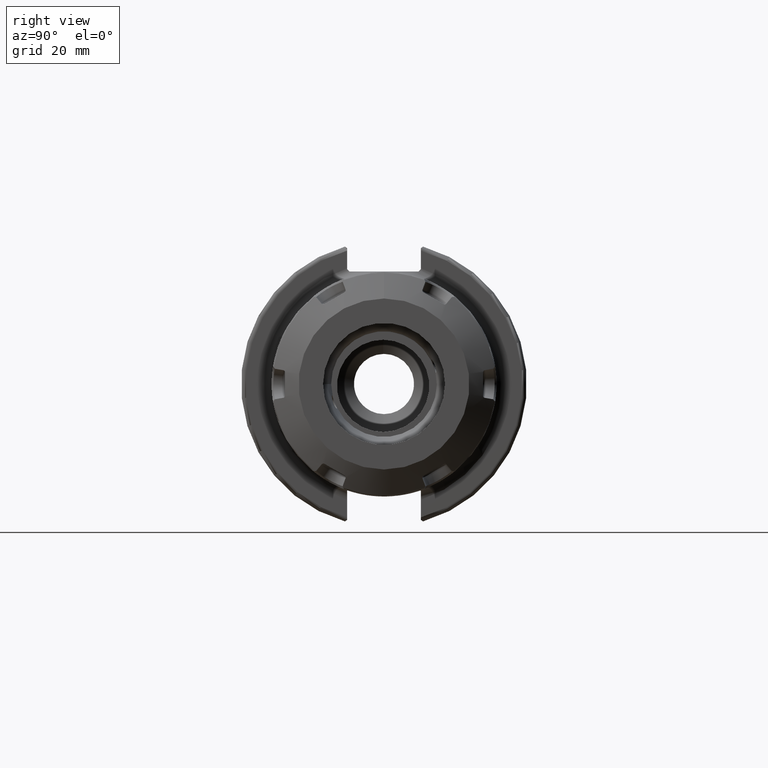
[diagram: clean part render]
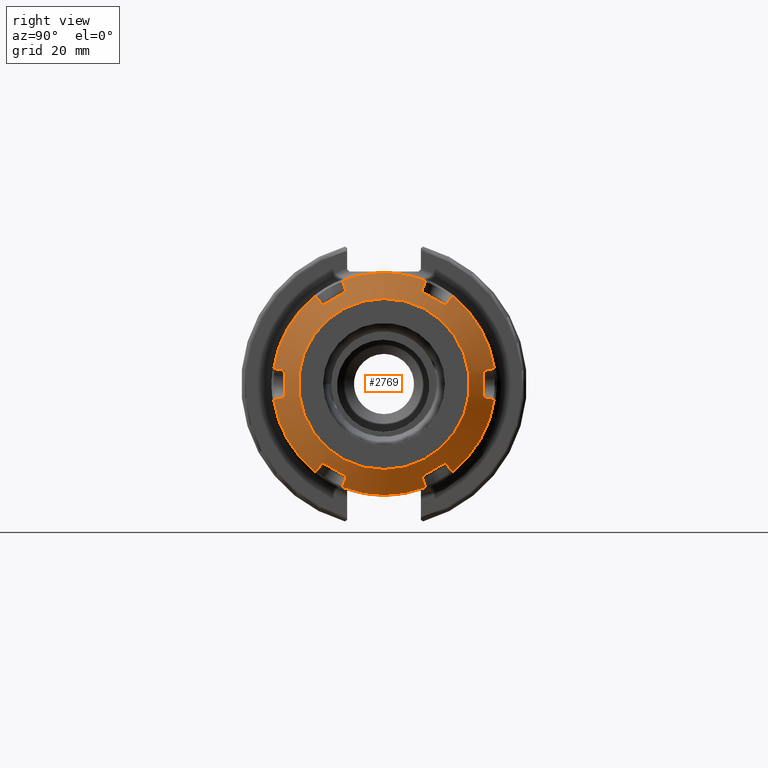
[diagram: same view with one face highlighted and labeled with its STEP entity id]
A machine part, right view. The second image highlights one B-rep face of the part: STEP entity #2769.
In plain terms, the highlighted conical surface has half-angle 60 deg.
Its self-contained STEP definition (entity closure, byte-faithful):
#133=(
BOUNDED_CURVE()
B_SPLINE_CURVE(2,(#4760,#4761,#4762),.UNSPECIFIED.,.F.,.F.)
B_SPLINE_CURVE_WITH_KNOTS((3,3),(3.51476215686957,4.31734241493005),
 .UNSPECIFIED.)
CURVE()
GEOMETRIC_REPRESENTATION_ITEM()
RATIONAL_B_SPLINE_CURVE((1.47709269009182,1.48721867500282,1.47709269009183))
REPRESENTATION_ITEM('')
);
#134=(
BOUNDED_CURVE()
B_SPLINE_CURVE(2,(#4814,#4815,#4816),.UNSPECIFIED.,.F.,.F.)
B_SPLINE_CURVE_WITH_KNOTS((3,3),(3.51476215686976,4.31734241493044),
 .UNSPECIFIED.)
CURVE()
GEOMETRIC_REPRESENTATION_ITEM()
RATIONAL_B_SPLINE_CURVE((1.47709269009192,1.48721867500291,1.47709269009192))
REPRESENTATION_ITEM('')
);
#135=(
BOUNDED_CURVE()
B_SPLINE_CURVE(2,(#4868,#4869,#4870),.UNSPECIFIED.,.F.,.F.)
B_SPLINE_CURVE_WITH_KNOTS((3,3),(3.51476215686984,4.31734241493033),
 .UNSPECIFIED.)
CURVE()
GEOMETRIC_REPRESENTATION_ITEM()
RATIONAL_B_SPLINE_CURVE((1.47709269009183,1.48721867500282,1.47709269009182))
REPRESENTATION_ITEM('')
);
#136=(
BOUNDED_CURVE()
B_SPLINE_CURVE(2,(#4922,#4923,#4924),.UNSPECIFIED.,.F.,.F.)
B_SPLINE_CURVE_WITH_KNOTS((3,3),(3.51476215686957,4.31734241493005),
 .UNSPECIFIED.)
CURVE()
GEOMETRIC_REPRESENTATION_ITEM()
RATIONAL_B_SPLINE_CURVE((1.47709269009182,1.48721867500282,1.47709269009183))
REPRESENTATION_ITEM('')
);
#137=(
BOUNDED_CURVE()
B_SPLINE_CURVE(2,(#4976,#4977,#4978),.UNSPECIFIED.,.F.,.F.)
B_SPLINE_CURVE_WITH_KNOTS((3,3),(3.51476215686976,4.31734241493044),
 .UNSPECIFIED.)
CURVE()
GEOMETRIC_REPRESENTATION_ITEM()
RATIONAL_B_SPLINE_CURVE((1.47709269009192,1.48721867500291,1.47709269009192))
REPRESENTATION_ITEM('')
);
#138=(
BOUNDED_CURVE()
B_SPLINE_CURVE(2,(#5030,#5031,#5032),.UNSPECIFIED.,.F.,.F.)
B_SPLINE_CURVE_WITH_KNOTS((3,3),(3.51476215686984,4.31734241493033),
 .UNSPECIFIED.)
CURVE()
GEOMETRIC_REPRESENTATION_ITEM()
RATIONAL_B_SPLINE_CURVE((1.47709269009183,1.48721867500282,1.47709269009182))
REPRESENTATION_ITEM('')
);
#201=B_SPLINE_CURVE_WITH_KNOTS('',3,(#4736,#4737,#4738,#4739,#4740),
 .UNSPECIFIED.,.F.,.F.,(4,1,4),(0.,0.5,1.),.UNSPECIFIED.);
#202=B_SPLINE_CURVE_WITH_KNOTS('',3,(#4742,#4743,#4744,#4745,#4746,#4747),
 .UNSPECIFIED.,.F.,.F.,(4,1,1,4),(0.,0.3333333333333,0.6666666666667,1.),
 .UNSPECIFIED.);
#203=B_SPLINE_CURVE_WITH_KNOTS('',3,(#4749,#4750,#4751,#4752,#4753,#4754,
#4755,#4756,#4757,#4758),.UNSPECIFIED.,.F.,.F.,(4,2,2,2,4),(0.0021929011140548,
0.0216290017748505,0.0432580035497009,0.0616866380642235,0.0744888904768261),
 .UNSPECIFIED.);
#204=B_SPLINE_CURVE_WITH_KNOTS('',3,(#4764,#4765,#4766,#4767,#4768,#4769,
#4770,#4771,#4772,#4773),.UNSPECIFIED.,.F.,.F.,(4,2,2,2,4),(0.250635890627103,
0.263438143039404,0.281866777553927,0.303495779328777,0.322931879990271),
 .UNSPECIFIED.);
#205=B_SPLINE_CURVE_WITH_KNOTS('',3,(#4775,#4776,#4777,#4778,#4779,#4780),
 .UNSPECIFIED.,.F.,.F.,(4,1,1,4),(0.,0.3333333333333,0.6666666666667,1.),
 .UNSPECIFIED.);
#206=B_SPLINE_CURVE_WITH_KNOTS('',3,(#4782,#4783,#4784,#4785,#4786),
 .UNSPECIFIED.,.F.,.F.,(4,1,4),(0.,0.5,1.),.UNSPECIFIED.);
#207=B_SPLINE_CURVE_WITH_KNOTS('',3,(#4790,#4791,#4792,#4793,#4794),
 .UNSPECIFIED.,.F.,.F.,(4,1,4),(0.,0.5,1.),.UNSPECIFIED.);
#208=B_SPLINE_CURVE_WITH_KNOTS('',3,(#4796,#4797,#4798,#4799,#4800,#4801),
 .UNSPECIFIED.,.F.,.F.,(4,1,1,4),(0.,0.3333333333333,0.6666666666667,1.),
 .UNSPECIFIED.);
#209=B_SPLINE_CURVE_WITH_KNOTS('',3,(#4803,#4804,#4805,#4806,#4807,#4808,
#4809,#4810,#4811,#4812),.UNSPECIFIED.,.F.,.F.,(4,2,2,2,4),(0.00219290111341628,
0.0216290017748504,0.0432580035497007,0.0616866380642232,0.074488890476436),
 .UNSPECIFIED.);
#210=B_SPLINE_CURVE_WITH_KNOTS('',3,(#4818,#4819,#4820,#4821,#4822,#4823,
#4824,#4825,#4826,#4827),.UNSPECIFIED.,.F.,.F.,(4,2,2,2,4),(0.250635890627191,
0.263438143039404,0.281866777553927,0.303495779328777,0.32293187999021),
 .UNSPECIFIED.);
#211=B_SPLINE_CURVE_WITH_KNOTS('',3,(#4829,#4830,#4831,#4832,#4833,#4834),
 .UNSPECIFIED.,.F.,.F.,(4,1,1,4),(0.,0.3333333333333,0.6666666666667,1.),
 .UNSPECIFIED.);
#212=B_SPLINE_CURVE_WITH_KNOTS('',3,(#4836,#4837,#4838,#4839,#4840),
 .UNSPECIFIED.,.F.,.F.,(4,1,4),(0.,0.5,1.),.UNSPECIFIED.);
#213=B_SPLINE_CURVE_WITH_KNOTS('',3,(#4844,#4845,#4846,#4847,#4848),
 .UNSPECIFIED.,.F.,.F.,(4,1,4),(0.,0.5,1.),.UNSPECIFIED.);
#214=B_SPLINE_CURVE_WITH_KNOTS('',3,(#4850,#4851,#4852,#4853,#4854,#4855),
 .UNSPECIFIED.,.F.,.F.,(4,1,1,4),(0.,0.3333333333333,0.6666666666667,1.),
 .UNSPECIFIED.);
#215=B_SPLINE_CURVE_WITH_KNOTS('',3,(#4857,#4858,#4859,#4860,#4861,#4862,
#4863,#4864,#4865,#4866),.UNSPECIFIED.,.F.,.F.,(4,2,2,2,4),(0.00219290111335722,
0.0216290017748503,0.0432580035497006,0.0616866380642232,0.0744888904765242),
 .UNSPECIFIED.);
#216=B_SPLINE_CURVE_WITH_KNOTS('',3,(#4872,#4873,#4874,#4875,#4876,#4877,
#4878,#4879,#4880,#4881),.UNSPECIFIED.,.F.,.F.,(4,2,2,2,4),(0.250635890626801,
0.263438143039404,0.281866777553926,0.303495779328777,0.322931879989572),
 .UNSPECIFIED.);
#217=B_SPLINE_CURVE_WITH_KNOTS('',3,(#4883,#4884,#4885,#4886,#4887,#4888),
 .UNSPECIFIED.,.F.,.F.,(4,1,1,4),(0.,0.3333333333333,0.6666666666667,1.),
 .UNSPECIFIED.);
#218=B_SPLINE_CURVE_WITH_KNOTS('',3,(#4890,#4891,#4892,#4893,#4894),
 .UNSPECIFIED.,.F.,.F.,(4,1,4),(0.,0.5,1.),.UNSPECIFIED.);
#219=B_SPLINE_CURVE_WITH_KNOTS('',3,(#4898,#4899,#4900,#4901,#4902),
 .UNSPECIFIED.,.F.,.F.,(4,1,4),(0.,0.5,1.),.UNSPECIFIED.);
#220=B_SPLINE_CURVE_WITH_KNOTS('',3,(#4904,#4905,#4906,#4907,#4908,#4909),
 .UNSPECIFIED.,.F.,.F.,(4,1,1,4),(0.,0.3333333333333,0.6666666666667,1.),
 .UNSPECIFIED.);
#221=B_SPLINE_CURVE_WITH_KNOTS('',3,(#4911,#4912,#4913,#4914,#4915,#4916,
#4917,#4918,#4919,#4920),.UNSPECIFIED.,.F.,.F.,(4,2,2,2,4),(0.0021929011140548,
0.0216290017748505,0.0432580035497009,0.0616866380642235,0.0744888904768256),
 .UNSPECIFIED.);
#222=B_SPLINE_CURVE_WITH_KNOTS('',3,(#4926,#4927,#4928,#4929,#4930,#4931,
#4932,#4933,#4934,#4935),.UNSPECIFIED.,.F.,.F.,(4,2,2,2,4),(0.250635890627103,
0.263438143039404,0.281866777553927,0.303495779328777,0.322931879990271),
 .UNSPECIFIED.);
#223=B_SPLINE_CURVE_WITH_KNOTS('',3,(#4937,#4938,#4939,#4940,#4941,#4942),
 .UNSPECIFIED.,.F.,.F.,(4,1,1,4),(0.,0.3333333333333,0.6666666666667,1.),
 .UNSPECIFIED.);
#224=B_SPLINE_CURVE_WITH_KNOTS('',3,(#4944,#4945,#4946,#4947,#4948),
 .UNSPECIFIED.,.F.,.F.,(4,1,4),(0.,0.5,1.),.UNSPECIFIED.);
#225=B_SPLINE_CURVE_WITH_KNOTS('',3,(#4952,#4953,#4954,#4955,#4956),
 .UNSPECIFIED.,.F.,.F.,(4,1,4),(0.,0.5,1.),.UNSPECIFIED.);
#226=B_SPLINE_CURVE_WITH_KNOTS('',3,(#4958,#4959,#4960,#4961,#4962,#4963),
 .UNSPECIFIED.,.F.,.F.,(4,1,1,4),(0.,0.3333333333333,0.6666666666667,1.),
 .UNSPECIFIED.);
#227=B_SPLINE_CURVE_WITH_KNOTS('',3,(#4965,#4966,#4967,#4968,#4969,#4970,
#4971,#4972,#4973,#4974),.UNSPECIFIED.,.F.,.F.,(4,2,2,2,4),(0.00219290111341628,
0.0216290017748504,0.0432580035497007,0.0616866380642232,0.074488890476436),
 .UNSPECIFIED.);
#228=B_SPLINE_CURVE_WITH_KNOTS('',3,(#4980,#4981,#4982,#4983,#4984,#4985,
#4986,#4987,#4988,#4989),.UNSPECIFIED.,.F.,.F.,(4,2,2,2,4),(0.250635890627191,
0.263438143039404,0.281866777553927,0.303495779328777,0.32293187999021),
 .UNSPECIFIED.);
#229=B_SPLINE_CURVE_WITH_KNOTS('',3,(#4991,#4992,#4993,#4994,#4995,#4996),
 .UNSPECIFIED.,.F.,.F.,(4,1,1,4),(0.,0.3333333333333,0.6666666666667,1.),
 .UNSPECIFIED.);
#230=B_SPLINE_CURVE_WITH_KNOTS('',3,(#4998,#4999,#5000,#5001,#5002),
 .UNSPECIFIED.,.F.,.F.,(4,1,4),(0.,0.5,1.),.UNSPECIFIED.);
#231=B_SPLINE_CURVE_WITH_KNOTS('',3,(#5006,#5007,#5008,#5009,#5010),
 .UNSPECIFIED.,.F.,.F.,(4,1,4),(0.,0.5,1.),.UNSPECIFIED.);
#232=B_SPLINE_CURVE_WITH_KNOTS('',3,(#5012,#5013,#5014,#5015,#5016,#5017),
 .UNSPECIFIED.,.F.,.F.,(4,1,1,4),(0.,0.3333333333333,0.6666666666667,1.),
 .UNSPECIFIED.);
#233=B_SPLINE_CURVE_WITH_KNOTS('',3,(#5019,#5020,#5021,#5022,#5023,#5024,
#5025,#5026,#5027,#5028),.UNSPECIFIED.,.F.,.F.,(4,2,2,2,4),(0.00219290111335722,
0.0216290017748503,0.0432580035497006,0.0616866380642232,0.0744888904765241),
 .UNSPECIFIED.);
#234=B_SPLINE_CURVE_WITH_KNOTS('',3,(#5034,#5035,#5036,#5037,#5038,#5039,
#5040,#5041,#5042,#5043),.UNSPECIFIED.,.F.,.F.,(4,2,2,2,4),(0.250635890626801,
0.263438143039404,0.281866777553926,0.303495779328777,0.322931879989573),
 .UNSPECIFIED.);
#235=B_SPLINE_CURVE_WITH_KNOTS('',3,(#5045,#5046,#5047,#5048,#5049,#5050),
 .UNSPECIFIED.,.F.,.F.,(4,1,1,4),(0.,0.3333333333333,0.6666666666667,1.),
 .UNSPECIFIED.);
#236=B_SPLINE_CURVE_WITH_KNOTS('',3,(#5052,#5053,#5054,#5055,#5056),
 .UNSPECIFIED.,.F.,.F.,(4,1,4),(0.,0.5,1.),.UNSPECIFIED.);
#475=FACE_OUTER_BOUND('',#651,.T.);
#651=EDGE_LOOP('',(#2295,#2296,#2297,#2298,#2299,#2300,#2301,#2302,#2303,
#2304,#2305,#2306,#2307,#2308,#2309,#2310,#2311,#2312,#2313,#2314,#2315,
#2316,#2317,#2318,#2319,#2320,#2321,#2322,#2323,#2324,#2325,#2326,#2327,
#2328,#2329,#2330,#2331,#2332,#2333,#2334,#2335,#2336,#2337,#2338,#2339,
#2340,#2341,#2342,#2343,#2344,#2345,#2346));
#808=LINE('',#5058,#971);
#971=VECTOR('',#3662,21.87499999999);
#1131=CIRCLE('',#3091,19.);
#1132=CIRCLE('',#3093,24.75);
#1133=CIRCLE('',#3094,24.75);
#1134=CIRCLE('',#3095,24.75);
#1135=CIRCLE('',#3096,24.75);
#1136=CIRCLE('',#3097,24.75);
#1137=CIRCLE('',#3098,24.75);
#1138=CIRCLE('',#3099,24.75);
#1321=VERTEX_POINT('',#4729);
#1322=VERTEX_POINT('',#4732);
#1323=VERTEX_POINT('',#4733);
#1324=VERTEX_POINT('',#4735);
#1325=VERTEX_POINT('',#4741);
#1326=VERTEX_POINT('',#4748);
#1327=VERTEX_POINT('',#4759);
#1328=VERTEX_POINT('',#4763);
#1329=VERTEX_POINT('',#4774);
#1330=VERTEX_POINT('',#4781);
#1331=VERTEX_POINT('',#4787);
#1332=VERTEX_POINT('',#4789);
#1333=VERTEX_POINT('',#4795);
#1334=VERTEX_POINT('',#4802);
#1335=VERTEX_POINT('',#4813);
#1336=VERTEX_POINT('',#4817);
#1337=VERTEX_POINT('',#4828);
#1338=VERTEX_POINT('',#4835);
#1339=VERTEX_POINT('',#4841);
#1340=VERTEX_POINT('',#4843);
#1341=VERTEX_POINT('',#4849);
#1342=VERTEX_POINT('',#4856);
#1343=VERTEX_POINT('',#4867);
#1344=VERTEX_POINT('',#4871);
#1345=VERTEX_POINT('',#4882);
#1346=VERTEX_POINT('',#4889);
#1347=VERTEX_POINT('',#4895);
#1348=VERTEX_POINT('',#4897);
#1349=VERTEX_POINT('',#4903);
#1350=VERTEX_POINT('',#4910);
#1351=VERTEX_POINT('',#4921);
#1352=VERTEX_POINT('',#4925);
#1353=VERTEX_POINT('',#4936);
#1354=VERTEX_POINT('',#4943);
#1355=VERTEX_POINT('',#4949);
#1356=VERTEX_POINT('',#4951);
#1357=VERTEX_POINT('',#4957);
#1358=VERTEX_POINT('',#4964);
#1359=VERTEX_POINT('',#4975);
#1360=VERTEX_POINT('',#4979);
#1361=VERTEX_POINT('',#4990);
#1362=VERTEX_POINT('',#4997);
#1363=VERTEX_POINT('',#5003);
#1364=VERTEX_POINT('',#5005);
#1365=VERTEX_POINT('',#5011);
#1366=VERTEX_POINT('',#5018);
#1367=VERTEX_POINT('',#5029);
#1368=VERTEX_POINT('',#5033);
#1369=VERTEX_POINT('',#5044);
#1370=VERTEX_POINT('',#5051);
#1660=EDGE_CURVE('',#1321,#1321,#1131,.T.);
#1661=EDGE_CURVE('',#1322,#1323,#1132,.T.);
#1662=EDGE_CURVE('',#1322,#1324,#201,.T.);
#1663=EDGE_CURVE('',#1325,#1324,#202,.T.);
#1664=EDGE_CURVE('',#1325,#1326,#203,.T.);
#1665=EDGE_CURVE('',#1327,#1326,#133,.T.);
#1666=EDGE_CURVE('',#1327,#1328,#204,.T.);
#1667=EDGE_CURVE('',#1329,#1328,#205,.T.);
#1668=EDGE_CURVE('',#1329,#1330,#206,.T.);
#1669=EDGE_CURVE('',#1330,#1331,#1133,.T.);
#1670=EDGE_CURVE('',#1331,#1332,#207,.T.);
#1671=EDGE_CURVE('',#1333,#1332,#208,.T.);
#1672=EDGE_CURVE('',#1333,#1334,#209,.T.);
#1673=EDGE_CURVE('',#1335,#1334,#134,.T.);
#1674=EDGE_CURVE('',#1335,#1336,#210,.T.);
#1675=EDGE_CURVE('',#1337,#1336,#211,.T.);
#1676=EDGE_CURVE('',#1337,#1338,#212,.T.);
#1677=EDGE_CURVE('',#1338,#1339,#1134,.T.);
#1678=EDGE_CURVE('',#1339,#1340,#213,.T.);
#1679=EDGE_CURVE('',#1341,#1340,#214,.T.);
#1680=EDGE_CURVE('',#1341,#1342,#215,.T.);
#1681=EDGE_CURVE('',#1343,#1342,#135,.T.);
#1682=EDGE_CURVE('',#1343,#1344,#216,.T.);
#1683=EDGE_CURVE('',#1345,#1344,#217,.T.);
#1684=EDGE_CURVE('',#1345,#1346,#218,.T.);
#1685=EDGE_CURVE('',#1347,#1346,#1135,.T.);
#1686=EDGE_CURVE('',#1347,#1348,#219,.T.);
#1687=EDGE_CURVE('',#1349,#1348,#220,.T.);
#1688=EDGE_CURVE('',#1349,#1350,#221,.T.);
#1689=EDGE_CURVE('',#1351,#1350,#136,.T.);
#1690=EDGE_CURVE('',#1351,#1352,#222,.T.);
#1691=EDGE_CURVE('',#1353,#1352,#223,.T.);
#1692=EDGE_CURVE('',#1353,#1354,#224,.T.);
#1693=EDGE_CURVE('',#1354,#1355,#1136,.T.);
#1694=EDGE_CURVE('',#1355,#1356,#225,.T.);
#1695=EDGE_CURVE('',#1357,#1356,#226,.T.);
#1696=EDGE_CURVE('',#1357,#1358,#227,.T.);
#1697=EDGE_CURVE('',#1359,#1358,#137,.T.);
#1698=EDGE_CURVE('',#1359,#1360,#228,.T.);
#1699=EDGE_CURVE('',#1361,#1360,#229,.T.);
#1700=EDGE_CURVE('',#1361,#1362,#230,.T.);
#1701=EDGE_CURVE('',#1362,#1363,#1137,.T.);
#1702=EDGE_CURVE('',#1363,#1364,#231,.T.);
#1703=EDGE_CURVE('',#1365,#1364,#232,.T.);
#1704=EDGE_CURVE('',#1365,#1366,#233,.T.);
#1705=EDGE_CURVE('',#1367,#1366,#138,.T.);
#1706=EDGE_CURVE('',#1367,#1368,#234,.T.);
#1707=EDGE_CURVE('',#1369,#1368,#235,.T.);
#1708=EDGE_CURVE('',#1369,#1370,#236,.T.);
#1709=EDGE_CURVE('',#1323,#1370,#1138,.T.);
#1710=EDGE_CURVE('',#1323,#1321,#808,.T.);
#2295=ORIENTED_EDGE('',*,*,#1661,.F.);
#2296=ORIENTED_EDGE('',*,*,#1662,.T.);
#2297=ORIENTED_EDGE('',*,*,#1663,.F.);
#2298=ORIENTED_EDGE('',*,*,#1664,.T.);
#2299=ORIENTED_EDGE('',*,*,#1665,.F.);
#2300=ORIENTED_EDGE('',*,*,#1666,.T.);
#2301=ORIENTED_EDGE('',*,*,#1667,.F.);
#2302=ORIENTED_EDGE('',*,*,#1668,.T.);
#2303=ORIENTED_EDGE('',*,*,#1669,.T.);
#2304=ORIENTED_EDGE('',*,*,#1670,.T.);
#2305=ORIENTED_EDGE('',*,*,#1671,.F.);
#2306=ORIENTED_EDGE('',*,*,#1672,.T.);
#2307=ORIENTED_EDGE('',*,*,#1673,.F.);
#2308=ORIENTED_EDGE('',*,*,#1674,.T.);
#2309=ORIENTED_EDGE('',*,*,#1675,.F.);
#2310=ORIENTED_EDGE('',*,*,#1676,.T.);
#2311=ORIENTED_EDGE('',*,*,#1677,.T.);
#2312=ORIENTED_EDGE('',*,*,#1678,.T.);
#2313=ORIENTED_EDGE('',*,*,#1679,.F.);
#2314=ORIENTED_EDGE('',*,*,#1680,.T.);
#2315=ORIENTED_EDGE('',*,*,#1681,.F.);
#2316=ORIENTED_EDGE('',*,*,#1682,.T.);
#2317=ORIENTED_EDGE('',*,*,#1683,.F.);
#2318=ORIENTED_EDGE('',*,*,#1684,.T.);
#2319=ORIENTED_EDGE('',*,*,#1685,.F.);
#2320=ORIENTED_EDGE('',*,*,#1686,.T.);
#2321=ORIENTED_EDGE('',*,*,#1687,.F.);
#2322=ORIENTED_EDGE('',*,*,#1688,.T.);
#2323=ORIENTED_EDGE('',*,*,#1689,.F.);
#2324=ORIENTED_EDGE('',*,*,#1690,.T.);
#2325=ORIENTED_EDGE('',*,*,#1691,.F.);
#2326=ORIENTED_EDGE('',*,*,#1692,.T.);
#2327=ORIENTED_EDGE('',*,*,#1693,.T.);
#2328=ORIENTED_EDGE('',*,*,#1694,.T.);
#2329=ORIENTED_EDGE('',*,*,#1695,.F.);
#2330=ORIENTED_EDGE('',*,*,#1696,.T.);
#2331=ORIENTED_EDGE('',*,*,#1697,.F.);
#2332=ORIENTED_EDGE('',*,*,#1698,.T.);
#2333=ORIENTED_EDGE('',*,*,#1699,.F.);
#2334=ORIENTED_EDGE('',*,*,#1700,.T.);
#2335=ORIENTED_EDGE('',*,*,#1701,.T.);
#2336=ORIENTED_EDGE('',*,*,#1702,.T.);
#2337=ORIENTED_EDGE('',*,*,#1703,.F.);
#2338=ORIENTED_EDGE('',*,*,#1704,.T.);
#2339=ORIENTED_EDGE('',*,*,#1705,.F.);
#2340=ORIENTED_EDGE('',*,*,#1706,.T.);
#2341=ORIENTED_EDGE('',*,*,#1707,.F.);
#2342=ORIENTED_EDGE('',*,*,#1708,.T.);
#2343=ORIENTED_EDGE('',*,*,#1709,.F.);
#2344=ORIENTED_EDGE('',*,*,#1710,.T.);
#2345=ORIENTED_EDGE('',*,*,#1660,.F.);
#2346=ORIENTED_EDGE('',*,*,#1710,.F.);
#2671=CONICAL_SURFACE('',#3092,21.87499999999,1.0471975511966);
#2769=ADVANCED_FACE('',(#475),#2671,.T.);
#3091=AXIS2_PLACEMENT_3D('',#4730,#3644,#3645);
#3092=AXIS2_PLACEMENT_3D('',#4731,#3646,#3647);
#3093=AXIS2_PLACEMENT_3D('',#4734,#3648,#3649);
#3094=AXIS2_PLACEMENT_3D('',#4788,#3650,#3651);
#3095=AXIS2_PLACEMENT_3D('',#4842,#3652,#3653);
#3096=AXIS2_PLACEMENT_3D('',#4896,#3654,#3655);
#3097=AXIS2_PLACEMENT_3D('',#4950,#3656,#3657);
#3098=AXIS2_PLACEMENT_3D('',#5004,#3658,#3659);
#3099=AXIS2_PLACEMENT_3D('',#5057,#3660,#3661);
#3644=DIRECTION('center_axis',(1.,0.,0.));
#3645=DIRECTION('ref_axis',(0.,0.,1.));
#3646=DIRECTION('center_axis',(-1.,0.,0.));
#3647=DIRECTION('ref_axis',(0.,0.,-1.));
#3648=DIRECTION('center_axis',(-1.,0.,0.));
#3649=DIRECTION('ref_axis',(0.,-0.365626291910614,0.930761738934135));
#3650=DIRECTION('center_axis',(1.,0.,0.));
#3651=DIRECTION('ref_axis',(0.,-0.623250164832195,0.782022526553194));
#3652=DIRECTION('center_axis',(1.,0.,0.));
#3653=DIRECTION('ref_axis',(0.,-0.988876456742842,-0.148739212381006));
#3654=DIRECTION('center_axis',(-1.,0.,0.));
#3655=DIRECTION('ref_axis',(0.,0.365626291910614,-0.930761738934135));
#3656=DIRECTION('center_axis',(1.,0.,0.));
#3657=DIRECTION('ref_axis',(0.,0.623250164832195,-0.782022526553194));
#3658=DIRECTION('center_axis',(1.,0.,0.));
#3659=DIRECTION('ref_axis',(0.,0.988876456742842,0.148739212381006));
#3660=DIRECTION('center_axis',(-1.,0.,0.));
#3661=DIRECTION('ref_axis',(0.,-0.365626291910614,0.930761738934135));
#3662=DIRECTION('',(0.5,-1.06057523872491E-16,-0.866025403784439));
#4729=CARTESIAN_POINT('',(11.25,0.,19.));
#4730=CARTESIAN_POINT('Origin',(11.25,0.,0.));
#4731=CARTESIAN_POINT('Origin',(9.590117976086,0.,0.));
#4732=CARTESIAN_POINT('',(7.93023595216,-9.049250724788,23.03635303862));
#4733=CARTESIAN_POINT('',(7.9302359521581,3.03100082789011E-15,24.7500000000034));
#4734=CARTESIAN_POINT('Origin',(7.93023595216,0.,0.));
#4735=CARTESIAN_POINT('',(8.067319186688,-9.192179591027,22.72376885589));
#4736=CARTESIAN_POINT('Ctrl Pts',(7.93023595216,-9.049250724788,23.03635303862));
#4737=CARTESIAN_POINT('Ctrl Pts',(7.953316779699,-9.073189986037,22.98399808325));
#4738=CARTESIAN_POINT('Ctrl Pts',(7.999244791068,-9.12095072866,22.87954575608));
#4739=CARTESIAN_POINT('Ctrl Pts',(8.04470557675,-9.168475901167,22.77560861869));
#4740=CARTESIAN_POINT('Ctrl Pts',(8.067319186688,-9.192179591027,22.72376885589));
#4741=CARTESIAN_POINT('',(9.158352391105,-8.545418276707,20.94680674902));
#4742=CARTESIAN_POINT('Ctrl Pts',(9.158352391105,-8.545418276707,20.94680674902));
#4743=CARTESIAN_POINT('Ctrl Pts',(9.038440212986,-8.616505886774,21.14211835248));
#4744=CARTESIAN_POINT('Ctrl Pts',(8.797739699423,-8.759197649026,21.53416074721));
#4745=CARTESIAN_POINT('Ctrl Pts',(8.434050555279,-8.974791288436,22.12649940327));
#4746=CARTESIAN_POINT('Ctrl Pts',(8.189853664668,-9.119545298481,22.52420777724));
#4747=CARTESIAN_POINT('Ctrl Pts',(8.067319186688,-9.192179591027,22.72376885589));
#4748=CARTESIAN_POINT('',(9.430874573907,-8.7652645871,20.34278397546));
#4749=CARTESIAN_POINT('Ctrl Pts',(9.15835239110429,-8.54541827670599,20.9468067490199));
#4750=CARTESIAN_POINT('Ctrl Pts',(9.19119712671738,-8.52594691195692,20.8933096140449));
#4751=CARTESIAN_POINT('Ctrl Pts',(9.22581604899738,-8.51482688393214,20.8330947998305));
#4752=CARTESIAN_POINT('Ctrl Pts',(9.29445479801047,-8.5157805992649,20.7042164191707));
#4753=CARTESIAN_POINT('Ctrl Pts',(9.3279557682139,-8.53075238997886,20.6353180550556));
#4754=CARTESIAN_POINT('Ctrl Pts',(9.37736091771003,-8.58080945742881,20.5218170940594));
#4755=CARTESIAN_POINT('Ctrl Pts',(9.39793108518539,-8.61569316863444,20.4685883608895));
#4756=CARTESIAN_POINT('Ctrl Pts',(9.42143915916752,-8.69153237608418,20.3922026331622));
#4757=CARTESIAN_POINT('Ctrl Pts',(9.42792730040714,-8.72731509387336,20.3646941255974));
#4758=CARTESIAN_POINT('Ctrl Pts',(9.43087457390542,-8.76526458710346,20.3427839754658));
#4759=CARTESIAN_POINT('',(9.430874573907,-13.2347354129,17.76233379105));
#4760=CARTESIAN_POINT('Ctrl Pts',(9.43087457390804,-13.2347354128814,17.7623337910653));
#4761=CARTESIAN_POINT('Ctrl Pts',(9.60443094839101,-11.0000000000022,19.0525588832588));
#4762=CARTESIAN_POINT('Ctrl Pts',(9.43087457390816,-8.76526458712295,20.3427839754522));
#4763=CARTESIAN_POINT('',(9.158352391105,-13.86775763446,17.8739526881));
#4764=CARTESIAN_POINT('Ctrl Pts',(9.43087457390979,-13.2347354128992,17.7623337910482));
#4765=CARTESIAN_POINT('Ctrl Pts',(9.42792730041141,-13.2726849061282,17.7404236409168));
#4766=CARTESIAN_POINT('Ctrl Pts',(9.42143915917186,-13.3143993313932,17.7231891520779));
#4767=CARTESIAN_POINT('Ctrl Pts',(9.39793108518996,-13.4184709158154,17.6957033356874));
#4768=CARTESIAN_POINT('Ctrl Pts',(9.37736091771461,-13.4820102065547,17.69210752219));
#4769=CARTESIAN_POINT('Ctrl Pts',(9.32795576821848,-13.6053334558563,17.7055073106375));
#4770=CARTESIAN_POINT('Ctrl Pts',(9.29445479801504,-13.6724870848161,17.7269905415966));
#4771=CARTESIAN_POINT('Ctrl Pts',(9.22581604900079,-13.7845758941345,17.7906037902214));
#4772=CARTESIAN_POINT('Ctrl Pts',(9.19119712671946,-13.8311634389173,17.8303414240907));
#4773=CARTESIAN_POINT('Ctrl Pts',(9.15835239110532,-13.8677576344614,17.873952688099));
#4774=CARTESIAN_POINT('',(8.067319186688,-15.08327130341,19.32254546992));
#4775=CARTESIAN_POINT('Ctrl Pts',(8.067319186688,-15.08327130341,19.32254546992));
#4776=CARTESIAN_POINT('Ctrl Pts',(8.189820037069,-14.94680094833,19.15990643397));
#4777=CARTESIAN_POINT('Ctrl Pts',(8.433972092865,-14.67480234824,18.83575112514));
#4778=CARTESIAN_POINT('Ctrl Pts',(8.797661267953,-14.26961881374,18.35287219224));
#4779=CARTESIAN_POINT('Ctrl Pts',(9.038406600502,-14.00139608927,18.03321679673));
#4780=CARTESIAN_POINT('Ctrl Pts',(9.158352391105,-13.86775763446,17.8739526881));
#4781=CARTESIAN_POINT('',(7.93023595216,-15.4254415796,19.35505753219));
#4782=CARTESIAN_POINT('Ctrl Pts',(8.067319186688,-15.08327130341,19.32254546992));
#4783=CARTESIAN_POINT('Ctrl Pts',(8.044725340155,-15.13996810573,19.32793264145));
#4784=CARTESIAN_POINT('Ctrl Pts',(7.99928450041,-15.25369337115,19.33873849797));
#4785=CARTESIAN_POINT('Ctrl Pts',(7.95333672401,-15.36808170532,19.34960735743));
#4786=CARTESIAN_POINT('Ctrl Pts',(7.93023595216,-15.4254415796,19.35505753219));
#4787=CARTESIAN_POINT('',(7.93023595216,-24.47469230439,3.681295506429));
#4788=CARTESIAN_POINT('Origin',(7.93023595216,0.,0.));
#4789=CARTESIAN_POINT('',(8.067319186688,-24.27545089444,3.401223385967));
#4790=CARTESIAN_POINT('Ctrl Pts',(7.93023595216,-24.47469230439,3.681295506429));
#4791=CARTESIAN_POINT('Ctrl Pts',(7.953305715115,-24.44133721122,3.634408508021));
#4792=CARTESIAN_POINT('Ctrl Pts',(7.999222761311,-24.37477523445,3.540842848246));
#4793=CARTESIAN_POINT('Ctrl Pts',(8.044694612529,-24.30850962179,3.447693785227));
#4794=CARTESIAN_POINT('Ctrl Pts',(8.067319186688,-24.27545089444,3.401223385967));
#4795=CARTESIAN_POINT('',(9.158352391105,-22.41317591117,3.072854060917));
#4796=CARTESIAN_POINT('Ctrl Pts',(9.158352391105,-22.41317591117,3.072854060917));
#4797=CARTESIAN_POINT('Ctrl Pts',(9.038441052253,-22.61786309384,3.108945933827));
#4798=CARTESIAN_POINT('Ctrl Pts',(8.797741657643,-23.02872573823,3.1813921034));
#4799=CARTESIAN_POINT('Ctrl Pts',(8.434052503311,-23.64950289927,3.290851865898));
#4800=CARTESIAN_POINT('Ctrl Pts',(8.189854499506,-24.06630735955,3.364345737925));
#4801=CARTESIAN_POINT('Ctrl Pts',(8.067319186688,-24.27545089444,3.401223385967));
#4802=CARTESIAN_POINT('',(9.430874573907,-22.,2.580450184411));
#4803=CARTESIAN_POINT('Ctrl Pts',(9.15835239110354,-22.413175911169,3.07285406091755));
#4804=CARTESIAN_POINT('Ctrl Pts',(9.19119712671759,-22.3571103508747,3.06296818994941));
#4805=CARTESIAN_POINT('Ctrl Pts',(9.2258160489988,-22.2994027780665,3.04249100960221));
#4806=CARTESIAN_POINT('Ctrl Pts',(9.29445479801296,-22.1882676840811,2.97722587756512));
#4807=CARTESIAN_POINT('Ctrl Pts',(9.3279557682164,-22.1360858458352,2.92981074440912));
#4808=CARTESIAN_POINT('Ctrl Pts',(9.37736091771253,-22.0628196639836,2.82970957186047));
#4809=CARTESIAN_POINT('Ctrl Pts',(9.39793108518788,-22.0341640844499,2.77288502519313));
#4810=CARTESIAN_POINT('Ctrl Pts',(9.42143915916971,-22.0059317074768,2.66901348107646));
#4811=CARTESIAN_POINT('Ctrl Pts',(9.42792730040924,-22.,2.62427048467359));
#4812=CARTESIAN_POINT('Ctrl Pts',(9.43087457390764,-22.,2.58045018441104));
#4813=CARTESIAN_POINT('',(9.430874573907,-22.,-2.580450184411));
#4814=CARTESIAN_POINT('Ctrl Pts',(9.43087457390924,-22.,-2.58045018438732));
#4815=CARTESIAN_POINT('Ctrl Pts',(9.60443094839223,-22.,-7.54951656745106E-15));
#4816=CARTESIAN_POINT('Ctrl Pts',(9.43087457390924,-22.,2.58045018438731));
#4817=CARTESIAN_POINT('',(9.158352391105,-22.41317591117,-3.072854060917));
#4818=CARTESIAN_POINT('Ctrl Pts',(9.43087457390764,-22.,-2.58045018441104));
#4819=CARTESIAN_POINT('Ctrl Pts',(9.42792730040924,-22.,-2.62427048467359));
#4820=CARTESIAN_POINT('Ctrl Pts',(9.42143915916971,-22.0059317074768,-2.66901348107646));
#4821=CARTESIAN_POINT('Ctrl Pts',(9.39793108518788,-22.0341640844499,-2.77288502519313));
#4822=CARTESIAN_POINT('Ctrl Pts',(9.37736091771252,-22.0628196639836,-2.82970957186047));
#4823=CARTESIAN_POINT('Ctrl Pts',(9.32795576821639,-22.1360858458352,-2.92981074440912));
#4824=CARTESIAN_POINT('Ctrl Pts',(9.29445479801296,-22.1882676840811,-2.97722587756512));
#4825=CARTESIAN_POINT('Ctrl Pts',(9.22581604899881,-22.2994027780665,-3.04249100960221));
#4826=CARTESIAN_POINT('Ctrl Pts',(9.1911971267176,-22.3571103508747,-3.06296818994941));
#4827=CARTESIAN_POINT('Ctrl Pts',(9.15835239110354,-22.413175911169,-3.07285406091755));
#4828=CARTESIAN_POINT('',(8.067319186688,-24.27545089444,-3.401223385967));
#4829=CARTESIAN_POINT('Ctrl Pts',(8.067319186688,-24.27545089444,-3.401223385967));
#4830=CARTESIAN_POINT('Ctrl Pts',(8.189820862073,-24.06636477199,-3.364355861288));
#4831=CARTESIAN_POINT('Ctrl Pts',(8.433974017959,-23.649636862,-3.290875487143));
#4832=CARTESIAN_POINT('Ctrl Pts',(8.797663203698,-23.02885965358,-3.181415716288));
#4833=CARTESIAN_POINT('Ctrl Pts',(9.03840743014,-22.61792048637,-3.10895605368));
#4834=CARTESIAN_POINT('Ctrl Pts',(9.158352391105,-22.41317591117,-3.072854060917));
#4835=CARTESIAN_POINT('',(7.93023595216,-24.47469230439,-3.681295506429));
#4836=CARTESIAN_POINT('Ctrl Pts',(8.067319186688,-24.27545089444,-3.401223385967));
#4837=CARTESIAN_POINT('Ctrl Pts',(8.044749094101,-24.30843001404,-3.447581881225));
#4838=CARTESIAN_POINT('Ctrl Pts',(7.999332227532,-24.37461613434,-3.540619202443));
#4839=CARTESIAN_POINT('Ctrl Pts',(7.95336069539,-24.44125771876,-3.634296766081));
#4840=CARTESIAN_POINT('Ctrl Pts',(7.93023595216,-24.47469230439,-3.681295506429));
#4841=CARTESIAN_POINT('',(7.93023595216,-15.4254415796,-19.35505753219));
#4842=CARTESIAN_POINT('Origin',(7.93023595216,0.,0.));
#4843=CARTESIAN_POINT('',(8.067319186688,-15.08327130341,-19.32254546992));
#4844=CARTESIAN_POINT('Ctrl Pts',(7.93023595216,-15.4254415796,-19.35505753219));
#4845=CARTESIAN_POINT('Ctrl Pts',(7.953379780775,-15.36797479415,-19.34959719903));
#4846=CARTESIAN_POINT('Ctrl Pts',(7.999370226496,-15.25347939375,-19.33871816643));
#4847=CARTESIAN_POINT('Ctrl Pts',(8.04476800637,-15.13986103951,-19.32792246831));
#4848=CARTESIAN_POINT('Ctrl Pts',(8.067319186688,-15.08327130341,-19.32254546992));
#4849=CARTESIAN_POINT('',(9.158352391105,-13.86775763446,-17.8739526881));
#4850=CARTESIAN_POINT('Ctrl Pts',(9.158352391105,-13.86775763446,-17.8739526881));
#4851=CARTESIAN_POINT('Ctrl Pts',(9.038440632719,-14.00135817203,-18.03317160872));
#4852=CARTESIAN_POINT('Ctrl Pts',(8.797740678764,-14.26953034065,-18.3527667541));
#4853=CARTESIAN_POINT('Ctrl Pts',(8.434051529518,-14.67471385047,-18.83564565759));
#4854=CARTESIAN_POINT('Ctrl Pts',(8.189854082183,-14.94676302084,-19.15986123375));
#4855=CARTESIAN_POINT('Ctrl Pts',(8.067319186688,-15.08327130341,-19.32254546992));
#4856=CARTESIAN_POINT('',(9.430874573907,-13.2347354129,-17.76233379105));
#4857=CARTESIAN_POINT('Ctrl Pts',(9.15835239110532,-13.8677576344614,-17.873952688099));
#4858=CARTESIAN_POINT('Ctrl Pts',(9.19119712671947,-13.8311634389173,-17.8303414240907));
#4859=CARTESIAN_POINT('Ctrl Pts',(9.22581604900079,-13.7845758941345,-17.7906037902214));
#4860=CARTESIAN_POINT('Ctrl Pts',(9.29445479801504,-13.6724870848161,-17.7269905415966));
#4861=CARTESIAN_POINT('Ctrl Pts',(9.32795576821848,-13.6053334558563,-17.7055073106375));
#4862=CARTESIAN_POINT('Ctrl Pts',(9.37736091771461,-13.4820102065547,-17.69210752219));
#4863=CARTESIAN_POINT('Ctrl Pts',(9.39793108518996,-13.4184709158154,-17.6957033356874));
#4864=CARTESIAN_POINT('Ctrl Pts',(9.42143915917186,-13.3143993313932,-17.7231891520779));
#4865=CARTESIAN_POINT('Ctrl Pts',(9.42792730041141,-13.2726849061282,-17.7404236409168));
#4866=CARTESIAN_POINT('Ctrl Pts',(9.43087457390979,-13.2347354128992,-17.7623337910482));
#4867=CARTESIAN_POINT('',(9.430874573907,-8.7652645871,-20.34278397546));
#4868=CARTESIAN_POINT('Ctrl Pts',(9.43087457390816,-8.76526458712292,-20.3427839754522));
#4869=CARTESIAN_POINT('Ctrl Pts',(9.60443094839101,-11.0000000000022,-19.0525588832588));
#4870=CARTESIAN_POINT('Ctrl Pts',(9.43087457390804,-13.2347354128814,-17.7623337910653));
#4871=CARTESIAN_POINT('',(9.158352391105,-8.545418276707,-20.94680674902));
#4872=CARTESIAN_POINT('Ctrl Pts',(9.43087457390542,-8.76526458710346,-20.3427839754658));
#4873=CARTESIAN_POINT('Ctrl Pts',(9.42792730040714,-8.72731509387336,-20.3646941255974));
#4874=CARTESIAN_POINT('Ctrl Pts',(9.42143915916752,-8.69153237608418,-20.3922026331622));
#4875=CARTESIAN_POINT('Ctrl Pts',(9.39793108518539,-8.61569316863444,-20.4685883608895));
#4876=CARTESIAN_POINT('Ctrl Pts',(9.37736091771003,-8.58080945742881,-20.5218170940594));
#4877=CARTESIAN_POINT('Ctrl Pts',(9.3279557682139,-8.53075238997886,-20.6353180550556));
#4878=CARTESIAN_POINT('Ctrl Pts',(9.29445479801047,-8.5157805992649,-20.7042164191707));
#4879=CARTESIAN_POINT('Ctrl Pts',(9.22581604899738,-8.51482688393214,-20.8330947998305));
#4880=CARTESIAN_POINT('Ctrl Pts',(9.19119712671738,-8.52594691195692,-20.8933096140449));
#4881=CARTESIAN_POINT('Ctrl Pts',(9.15835239110429,-8.54541827670599,-20.9468067490199));
#4882=CARTESIAN_POINT('',(8.067319186688,-9.192179591027,-22.72376885589));
#4883=CARTESIAN_POINT('Ctrl Pts',(8.067319186688,-9.192179591027,-22.72376885589));
#4884=CARTESIAN_POINT('Ctrl Pts',(8.189820449666,-9.11956498721,-22.52426187158));
#4885=CARTESIAN_POINT('Ctrl Pts',(8.433973055635,-8.974837228894,-22.12662562364));
#4886=CARTESIAN_POINT('Ctrl Pts',(8.797662236057,-8.759243570111,-21.53428691436));
#4887=CARTESIAN_POINT('Ctrl Pts',(9.03840701542,-8.616525567308,-21.1421724243));
#4888=CARTESIAN_POINT('Ctrl Pts',(9.158352391105,-8.545418276707,-20.94680674902));
#4889=CARTESIAN_POINT('',(7.93023595216,-9.049250724788,-23.03635303862));
#4890=CARTESIAN_POINT('Ctrl Pts',(8.067319186688,-9.192179591027,-22.72376885589));
#4891=CARTESIAN_POINT('Ctrl Pts',(8.044746800182,-9.168519111758,-22.7755141175));
#4892=CARTESIAN_POINT('Ctrl Pts',(7.999327618532,-9.121037087219,-22.87935689066));
#4893=CARTESIAN_POINT('Ctrl Pts',(7.953358380474,-9.073233134049,-22.98390371893));
#4894=CARTESIAN_POINT('Ctrl Pts',(7.93023595216,-9.049250724788,-23.03635303862));
#4895=CARTESIAN_POINT('',(7.93023595216,9.049250724788,-23.03635303862));
#4896=CARTESIAN_POINT('Origin',(7.93023595216,0.,0.));
#4897=CARTESIAN_POINT('',(8.067319186688,9.192179591027,-22.72376885589));
#4898=CARTESIAN_POINT('Ctrl Pts',(7.93023595216,9.049250724788,-23.03635303862));
#4899=CARTESIAN_POINT('Ctrl Pts',(7.953364010072,9.073238973026,-22.98389094913));
#4900=CARTESIAN_POINT('Ctrl Pts',(7.999338827066,9.121048773642,-22.87933133256));
#4901=CARTESIAN_POINT('Ctrl Pts',(8.044752378717,9.168524959203,-22.77550132919));
#4902=CARTESIAN_POINT('Ctrl Pts',(8.067319186688,9.192179591027,-22.72376885589));
#4903=CARTESIAN_POINT('',(9.158352391105,8.545418276707,-20.94680674902));
#4904=CARTESIAN_POINT('Ctrl Pts',(9.158352391105,8.545418276707,-20.94680674902));
#4905=CARTESIAN_POINT('Ctrl Pts',(9.038440632719,8.616505637944,-21.14211766883));
#4906=CARTESIAN_POINT('Ctrl Pts',(8.797740678764,8.759197068462,-21.53415915213));
#4907=CARTESIAN_POINT('Ctrl Pts',(8.434051529518,8.974790710924,-22.12649781657));
#4908=CARTESIAN_POINT('Ctrl Pts',(8.189854082183,9.119545050993,-22.52420709727));
#4909=CARTESIAN_POINT('Ctrl Pts',(8.067319186688,9.192179591027,-22.72376885589));
#4910=CARTESIAN_POINT('',(9.430874573907,8.7652645871,-20.34278397546));
#4911=CARTESIAN_POINT('Ctrl Pts',(9.15835239110429,8.54541827670599,-20.9468067490199));
#4912=CARTESIAN_POINT('Ctrl Pts',(9.19119712671738,8.52594691195692,-20.8933096140449));
#4913=CARTESIAN_POINT('Ctrl Pts',(9.22581604899738,8.51482688393214,-20.8330947998305));
#4914=CARTESIAN_POINT('Ctrl Pts',(9.29445479801047,8.5157805992649,-20.7042164191707));
#4915=CARTESIAN_POINT('Ctrl Pts',(9.3279557682139,8.53075238997886,-20.6353180550556));
#4916=CARTESIAN_POINT('Ctrl Pts',(9.37736091771003,8.58080945742881,-20.5218170940594));
#4917=CARTESIAN_POINT('Ctrl Pts',(9.39793108518538,8.61569316863444,-20.4685883608895));
#4918=CARTESIAN_POINT('Ctrl Pts',(9.42143915916751,8.69153237608418,-20.3922026331622));
#4919=CARTESIAN_POINT('Ctrl Pts',(9.42792730040714,8.72731509387336,-20.3646941255974));
#4920=CARTESIAN_POINT('Ctrl Pts',(9.43087457390542,8.76526458710346,-20.3427839754658));
#4921=CARTESIAN_POINT('',(9.430874573907,13.2347354129,-17.76233379105));
#4922=CARTESIAN_POINT('Ctrl Pts',(9.43087457390804,13.2347354128814,-17.7623337910653));
#4923=CARTESIAN_POINT('Ctrl Pts',(9.60443094839101,11.0000000000022,-19.0525588832588));
#4924=CARTESIAN_POINT('Ctrl Pts',(9.43087457390816,8.76526458712295,-20.3427839754522));
#4925=CARTESIAN_POINT('',(9.158352391105,13.86775763446,-17.8739526881));
#4926=CARTESIAN_POINT('Ctrl Pts',(9.43087457390979,13.2347354128992,-17.7623337910482));
#4927=CARTESIAN_POINT('Ctrl Pts',(9.42792730041141,13.2726849061282,-17.7404236409168));
#4928=CARTESIAN_POINT('Ctrl Pts',(9.42143915917186,13.3143993313932,-17.7231891520779));
#4929=CARTESIAN_POINT('Ctrl Pts',(9.39793108518996,13.4184709158154,-17.6957033356874));
#4930=CARTESIAN_POINT('Ctrl Pts',(9.37736091771461,13.4820102065547,-17.69210752219));
#4931=CARTESIAN_POINT('Ctrl Pts',(9.32795576821848,13.6053334558563,-17.7055073106375));
#4932=CARTESIAN_POINT('Ctrl Pts',(9.29445479801504,13.6724870848161,-17.7269905415966));
#4933=CARTESIAN_POINT('Ctrl Pts',(9.22581604900079,13.7845758941345,-17.7906037902214));
#4934=CARTESIAN_POINT('Ctrl Pts',(9.19119712671946,13.8311634389173,-17.8303414240907));
#4935=CARTESIAN_POINT('Ctrl Pts',(9.15835239110532,13.8677576344614,-17.873952688099));
#4936=CARTESIAN_POINT('',(8.067319186688,15.08327130341,-19.32254546992));
#4937=CARTESIAN_POINT('Ctrl Pts',(8.067319186688,15.08327130341,-19.32254546992));
#4938=CARTESIAN_POINT('Ctrl Pts',(8.189820449666,14.94680048868,-19.15990588618));
#4939=CARTESIAN_POINT('Ctrl Pts',(8.433973055635,14.67480127565,-18.83574984687));
#4940=CARTESIAN_POINT('Ctrl Pts',(8.797662236057,14.26961773516,-18.35287090683));
#4941=CARTESIAN_POINT('Ctrl Pts',(9.03840701542,14.00139562698,-18.0332162458));
#4942=CARTESIAN_POINT('Ctrl Pts',(9.158352391105,13.86775763446,-17.8739526881));
#4943=CARTESIAN_POINT('',(7.93023595216,15.4254415796,-19.35505753219));
#4944=CARTESIAN_POINT('Ctrl Pts',(8.067319186688,15.08327130341,-19.32254546992));
#4945=CARTESIAN_POINT('Ctrl Pts',(8.044736463291,15.13994019343,-19.3279299893));
#4946=CARTESIAN_POINT('Ctrl Pts',(7.999306849361,15.25363758699,-19.33873319751));
#4947=CARTESIAN_POINT('Ctrl Pts',(7.953347948963,15.36805383344,-19.34960470912));
#4948=CARTESIAN_POINT('Ctrl Pts',(7.93023595216,15.4254415796,-19.35505753219));
#4949=CARTESIAN_POINT('',(7.93023595216,24.47469230439,-3.681295506429));
#4950=CARTESIAN_POINT('Origin',(7.93023595216,0.,0.));
#4951=CARTESIAN_POINT('',(8.067319186688,24.27545089444,-3.401223385967));
#4952=CARTESIAN_POINT('Ctrl Pts',(7.93023595216,24.47469230439,-3.681295506429));
#4953=CARTESIAN_POINT('Ctrl Pts',(7.95329907644,24.44134680966,-3.634422000468));
#4954=CARTESIAN_POINT('Ctrl Pts',(7.999209543588,24.37479444522,-3.540869852672));
#4955=CARTESIAN_POINT('Ctrl Pts',(8.04468803407,24.30851923415,-3.447707297242));
#4956=CARTESIAN_POINT('Ctrl Pts',(8.067319186688,24.27545089444,-3.401223385967));
#4957=CARTESIAN_POINT('',(9.158352391105,22.41317591117,-3.072854060917));
#4958=CARTESIAN_POINT('Ctrl Pts',(9.158352391105,22.41317591117,-3.072854060917));
#4959=CARTESIAN_POINT('Ctrl Pts',(9.038440632719,22.61786380998,-3.108946060102));
#4960=CARTESIAN_POINT('Ctrl Pts',(8.797740678764,23.02872740911,-3.18139239802));
#4961=CARTESIAN_POINT('Ctrl Pts',(8.434051529518,23.64950456139,-3.290852158975));
#4962=CARTESIAN_POINT('Ctrl Pts',(8.189854082183,24.06630807184,-3.364345863521));
#4963=CARTESIAN_POINT('Ctrl Pts',(8.067319186688,24.27545089444,-3.401223385967));
#4964=CARTESIAN_POINT('',(9.430874573907,22.,-2.580450184411));
#4965=CARTESIAN_POINT('Ctrl Pts',(9.15835239110354,22.413175911169,-3.07285406091755));
#4966=CARTESIAN_POINT('Ctrl Pts',(9.19119712671759,22.3571103508747,-3.06296818994941));
#4967=CARTESIAN_POINT('Ctrl Pts',(9.2258160489988,22.2994027780665,-3.04249100960221));
#4968=CARTESIAN_POINT('Ctrl Pts',(9.29445479801296,22.1882676840811,-2.97722587756512));
#4969=CARTESIAN_POINT('Ctrl Pts',(9.3279557682164,22.1360858458352,-2.92981074440912));
#4970=CARTESIAN_POINT('Ctrl Pts',(9.37736091771253,22.0628196639836,-2.82970957186047));
#4971=CARTESIAN_POINT('Ctrl Pts',(9.39793108518788,22.0341640844499,-2.77288502519313));
#4972=CARTESIAN_POINT('Ctrl Pts',(9.42143915916971,22.0059317074768,-2.66901348107646));
#4973=CARTESIAN_POINT('Ctrl Pts',(9.42792730040924,22.,-2.62427048467359));
#4974=CARTESIAN_POINT('Ctrl Pts',(9.43087457390764,22.,-2.58045018441104));
#4975=CARTESIAN_POINT('',(9.430874573907,22.,2.580450184411));
#4976=CARTESIAN_POINT('Ctrl Pts',(9.43087457390924,22.,2.58045018438732));
#4977=CARTESIAN_POINT('Ctrl Pts',(9.60443094839223,22.,7.54951656745106E-15));
#4978=CARTESIAN_POINT('Ctrl Pts',(9.43087457390924,22.,-2.58045018438731));
#4979=CARTESIAN_POINT('',(9.158352391105,22.41317591117,3.072854060917));
#4980=CARTESIAN_POINT('Ctrl Pts',(9.43087457390764,22.,2.58045018441104));
#4981=CARTESIAN_POINT('Ctrl Pts',(9.42792730040924,22.,2.62427048467359));
#4982=CARTESIAN_POINT('Ctrl Pts',(9.42143915916971,22.0059317074768,2.66901348107646));
#4983=CARTESIAN_POINT('Ctrl Pts',(9.39793108518788,22.0341640844499,2.77288502519313));
#4984=CARTESIAN_POINT('Ctrl Pts',(9.37736091771252,22.0628196639836,2.82970957186047));
#4985=CARTESIAN_POINT('Ctrl Pts',(9.32795576821639,22.1360858458352,2.92981074440912));
#4986=CARTESIAN_POINT('Ctrl Pts',(9.29445479801296,22.1882676840811,2.97722587756512));
#4987=CARTESIAN_POINT('Ctrl Pts',(9.22581604899881,22.2994027780665,3.04249100960221));
#4988=CARTESIAN_POINT('Ctrl Pts',(9.1911971267176,22.3571103508747,3.06296818994941));
#4989=CARTESIAN_POINT('Ctrl Pts',(9.15835239110354,22.413175911169,3.07285406091755));
#4990=CARTESIAN_POINT('',(8.067319186688,24.27545089444,3.401223385967));
#4991=CARTESIAN_POINT('Ctrl Pts',(8.067319186688,24.27545089444,3.401223385967));
#4992=CARTESIAN_POINT('Ctrl Pts',(8.189820449666,24.06636547589,3.364355985404));
#4993=CARTESIAN_POINT('Ctrl Pts',(8.433973055635,23.64963850455,3.290875776767));
#4994=CARTESIAN_POINT('Ctrl Pts',(8.797662236057,23.02886130527,3.181416007526));
#4995=CARTESIAN_POINT('Ctrl Pts',(9.03840701542,22.61792119429,3.108956178505));
#4996=CARTESIAN_POINT('Ctrl Pts',(9.158352391105,22.41317591117,3.072854060917));
#4997=CARTESIAN_POINT('',(7.93023595216,24.47469230439,3.681295506429));
#4998=CARTESIAN_POINT('Ctrl Pts',(8.067319186688,24.27545089444,3.401223385967));
#4999=CARTESIAN_POINT('Ctrl Pts',(8.044745362796,24.30843546618,3.447589545245));
#5000=CARTESIAN_POINT('Ctrl Pts',(7.999324730498,24.37462703071,3.540634519384));
#5001=CARTESIAN_POINT('Ctrl Pts',(7.953356929931,24.441263163,3.634304419003));
#5002=CARTESIAN_POINT('Ctrl Pts',(7.93023595216,24.47469230439,3.681295506429));
#5003=CARTESIAN_POINT('',(7.93023595216,15.4254415796,19.35505753219));
#5004=CARTESIAN_POINT('Origin',(7.93023595216,0.,0.));
#5005=CARTESIAN_POINT('',(8.067319186688,15.08327130341,19.32254546992));
#5006=CARTESIAN_POINT('Ctrl Pts',(7.93023595216,15.4254415796,19.35505753219));
#5007=CARTESIAN_POINT('Ctrl Pts',(7.953328461842,15.36810222052,19.34960930672));
#5008=CARTESIAN_POINT('Ctrl Pts',(7.999268050358,15.25373443127,19.33874239938));
#5009=CARTESIAN_POINT('Ctrl Pts',(8.04471715293,15.13998865069,19.32793459357));
#5010=CARTESIAN_POINT('Ctrl Pts',(8.067319186688,15.08327130341,19.32254546992));
#5011=CARTESIAN_POINT('',(9.158352391105,13.86775763446,17.8739526881));
#5012=CARTESIAN_POINT('Ctrl Pts',(9.158352391105,13.86775763446,17.8739526881));
#5013=CARTESIAN_POINT('Ctrl Pts',(9.038440212986,14.00135863968,18.03317216605));
#5014=CARTESIAN_POINT('Ctrl Pts',(8.797739699423,14.26953143175,18.35276805443));
#5015=CARTESIAN_POINT('Ctrl Pts',(8.434050555279,14.67471493583,18.83564695108));
#5016=CARTESIAN_POINT('Ctrl Pts',(8.189853664668,14.94676348597,19.15986178807));
#5017=CARTESIAN_POINT('Ctrl Pts',(8.067319186688,15.08327130341,19.32254546992));
#5018=CARTESIAN_POINT('',(9.430874573907,13.2347354129,17.76233379105));
#5019=CARTESIAN_POINT('Ctrl Pts',(9.15835239110532,13.8677576344614,17.873952688099));
#5020=CARTESIAN_POINT('Ctrl Pts',(9.19119712671947,13.8311634389173,17.8303414240907));
#5021=CARTESIAN_POINT('Ctrl Pts',(9.22581604900079,13.7845758941345,17.7906037902214));
#5022=CARTESIAN_POINT('Ctrl Pts',(9.29445479801504,13.6724870848161,17.7269905415966));
#5023=CARTESIAN_POINT('Ctrl Pts',(9.32795576821848,13.6053334558563,17.7055073106375));
#5024=CARTESIAN_POINT('Ctrl Pts',(9.37736091771461,13.4820102065547,17.69210752219));
#5025=CARTESIAN_POINT('Ctrl Pts',(9.39793108518996,13.4184709158154,17.6957033356874));
#5026=CARTESIAN_POINT('Ctrl Pts',(9.42143915917186,13.3143993313932,17.7231891520779));
#5027=CARTESIAN_POINT('Ctrl Pts',(9.42792730041141,13.2726849061282,17.7404236409168));
#5028=CARTESIAN_POINT('Ctrl Pts',(9.43087457390979,13.2347354128992,17.7623337910482));
#5029=CARTESIAN_POINT('',(9.430874573907,8.7652645871,20.34278397546));
#5030=CARTESIAN_POINT('Ctrl Pts',(9.43087457390816,8.76526458712292,20.3427839754522));
#5031=CARTESIAN_POINT('Ctrl Pts',(9.60443094839101,11.0000000000022,19.0525588832588));
#5032=CARTESIAN_POINT('Ctrl Pts',(9.43087457390804,13.2347354128814,17.7623337910653));
#5033=CARTESIAN_POINT('',(9.158352391105,8.545418276707,20.94680674902));
#5034=CARTESIAN_POINT('Ctrl Pts',(9.43087457390542,8.76526458710346,20.3427839754658));
#5035=CARTESIAN_POINT('Ctrl Pts',(9.42792730040714,8.72731509387336,20.3646941255974));
#5036=CARTESIAN_POINT('Ctrl Pts',(9.42143915916752,8.69153237608418,20.3922026331622));
#5037=CARTESIAN_POINT('Ctrl Pts',(9.39793108518539,8.61569316863443,20.4685883608895));
#5038=CARTESIAN_POINT('Ctrl Pts',(9.37736091771003,8.58080945742881,20.5218170940594));
#5039=CARTESIAN_POINT('Ctrl Pts',(9.3279557682139,8.53075238997886,20.6353180550556));
#5040=CARTESIAN_POINT('Ctrl Pts',(9.29445479801047,8.5157805992649,20.7042164191707));
#5041=CARTESIAN_POINT('Ctrl Pts',(9.22581604899738,8.51482688393214,20.8330947998305));
#5042=CARTESIAN_POINT('Ctrl Pts',(9.19119712671738,8.52594691195692,20.8933096140449));
#5043=CARTESIAN_POINT('Ctrl Pts',(9.15835239110429,8.54541827670599,20.9468067490199));
#5044=CARTESIAN_POINT('',(8.067319186688,9.192179591027,22.72376885589));
#5045=CARTESIAN_POINT('Ctrl Pts',(8.067319186688,9.192179591027,22.72376885589));
#5046=CARTESIAN_POINT('Ctrl Pts',(8.189820037069,9.119565231784,22.52426254354));
#5047=CARTESIAN_POINT('Ctrl Pts',(8.433972092865,8.974837799607,22.12662719166));
#5048=CARTESIAN_POINT('Ctrl Pts',(8.797661267953,8.759244144013,21.53428849114));
#5049=CARTESIAN_POINT('Ctrl Pts',(9.038406600502,8.616525813284,21.14217310012));
#5050=CARTESIAN_POINT('Ctrl Pts',(9.158352391105,8.545418276707,20.94680674902));
#5051=CARTESIAN_POINT('',(7.93023595216,9.049250724788,23.03635303862));
#5052=CARTESIAN_POINT('Ctrl Pts',(8.067319186688,9.192179591027,22.72376885589));
#5053=CARTESIAN_POINT('Ctrl Pts',(8.044731019267,9.16850257013,22.7755502939));
#5054=CARTESIAN_POINT('Ctrl Pts',(7.999295911063,9.121004027927,22.87942919105));
#5055=CARTESIAN_POINT('Ctrl Pts',(7.953342455106,9.073216616377,22.98393984293));
#5056=CARTESIAN_POINT('Ctrl Pts',(7.93023595216,9.049250724788,23.03635303862));
#5057=CARTESIAN_POINT('Origin',(7.93023595216,0.,0.));
#5058=CARTESIAN_POINT('',(9.590117976086,2.67891487313361E-15,21.87499999999));